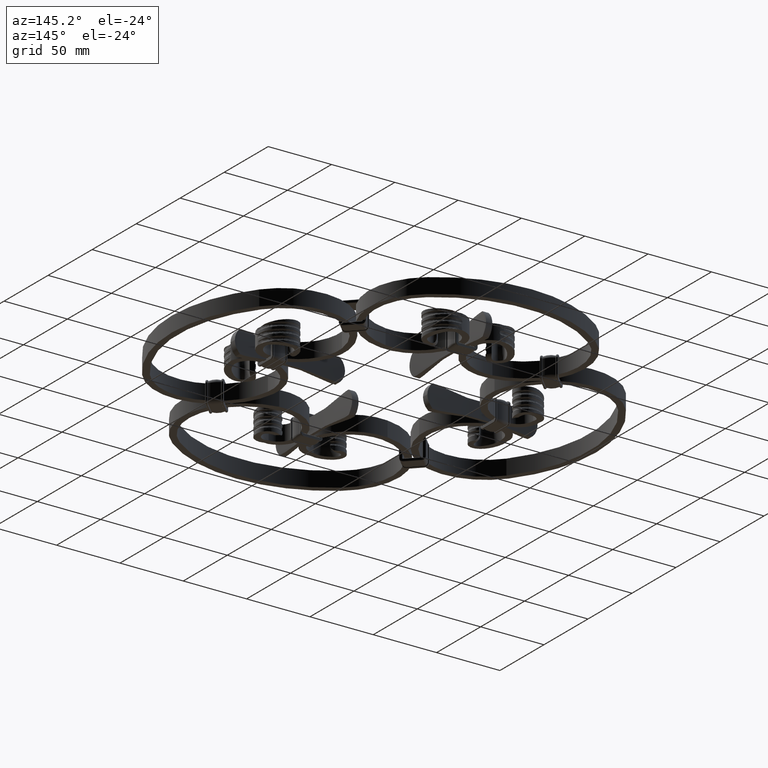
[diagram: clean part render]
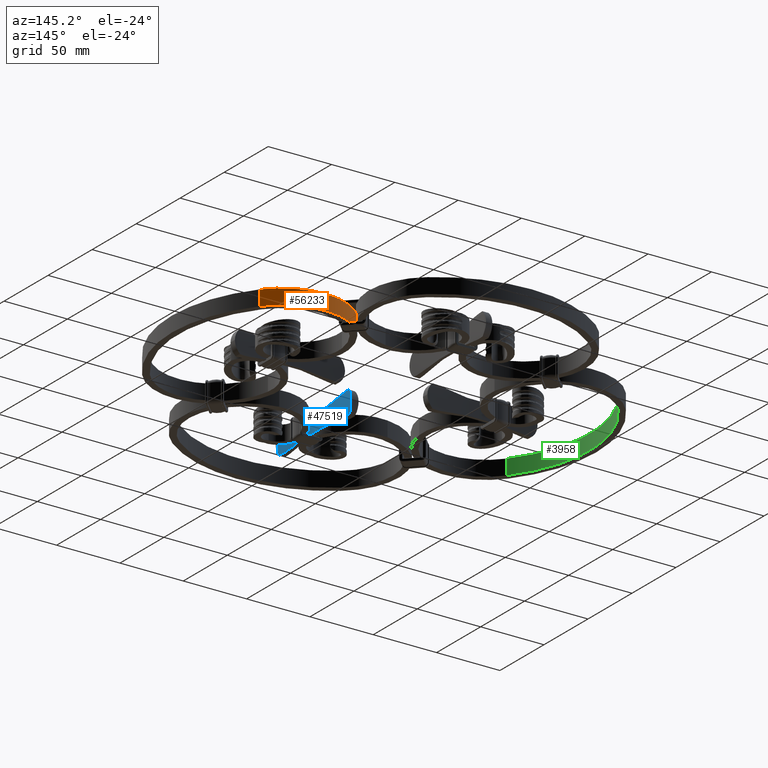
[diagram: same view with three faces highlighted in distinct colors, each labeled with its STEP entity id]
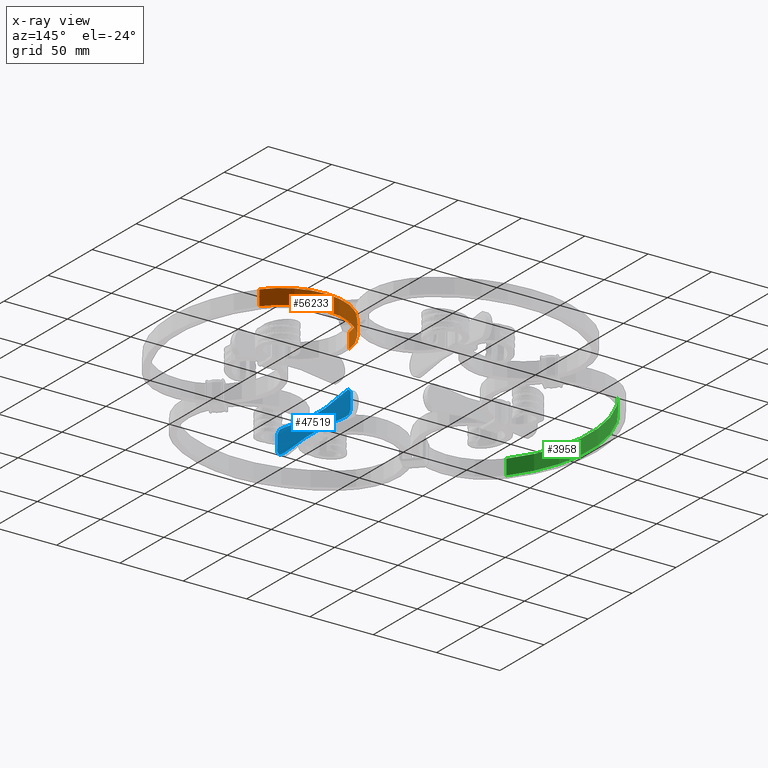
[diagram: x-ray of the same camera — body ghosted, the three highlighted faces saturated]
A machine part, auxiliary view with three faces highlighted in distinct colors.
The next image is the same camera in x-ray (body ghosted, the three faces saturated) — at least one of them is partly hidden behind the body in this view.
Their STEP definitions:

[orange] entity #56233 — the highlighted cylindrical surface (partial cylindrical patch) has radius 48.9407 mm, axis along (0, -0, -1).
#953 = VECTOR ( 'NONE', #55614, 1000.000000000000000 ) ;
#1088 = EDGE_LOOP ( 'NONE', ( #67085, #63960, #34444, #23081 ) ) ;
#1364 = AXIS2_PLACEMENT_3D ( 'NONE', #35351, #4784, #45774 ) ;
#3220 = VERTEX_POINT ( 'NONE', #13267 ) ;
#4410 = EDGE_CURVE ( 'NONE', #3220, #65204, #43055, .T. ) ;
#4784 = DIRECTION ( 'NONE',  ( -0.000000000000000000, 0.000000000000000000, 1.000000000000000000 ) ) ;
#7689 = DIRECTION ( 'NONE',  ( 0.7903160693451023455, 0.6126993639093379906, 0.000000000000000000 ) ) ;
#12461 = VECTOR ( 'NONE', #45234, 1000.000000000000000 ) ;
#13267 = CARTESIAN_POINT ( 'NONE',  ( 57.49999999999994316, 42.75000000000002132, -5.999999999999998224 ) ) ;
#15558 = DIRECTION ( 'NONE',  ( 1.000000000000000000, 0.000000000000000000, 0.000000000000000000 ) ) ;
#18672 = CYLINDRICAL_SURFACE ( 'NONE', #52045, 48.94072785700881667 ) ;
#23081 = ORIENTED_EDGE ( 'NONE', *, *, #4410, .T. ) ;
#23951 = VERTEX_POINT ( 'NONE', #60691 ) ;
#29501 = LINE ( 'NONE', #55679, #12461 ) ;
#29556 = CARTESIAN_POINT ( 'NONE',  ( 57.49999999999994316, 42.75000000000002132, -5.999999999999998224 ) ) ;
#34444 = ORIENTED_EDGE ( 'NONE', *, *, #36689, .T. ) ;
#34636 = CARTESIAN_POINT ( 'NONE',  ( 57.49999999999994316, 42.75000000000002132, 5.999999999999998224 ) ) ;
#35351 = CARTESIAN_POINT ( 'NONE',  ( 106.0476027397259600, 36.55927214299121886, 5.999999999999998224 ) ) ;
#36689 = EDGE_CURVE ( 'NONE', #41275, #3220, #59676, .T. ) ;
#38339 = EDGE_CURVE ( 'NONE', #41275, #23951, #29501, .T. ) ;
#39133 = DIRECTION ( 'NONE',  ( -0.000000000000000000, 0.000000000000000000, 1.000000000000000000 ) ) ;
#41275 = VERTEX_POINT ( 'NONE', #58018 ) ;
#41331 = DIRECTION ( 'NONE',  ( 0.000000000000000000, -0.000000000000000000, -1.000000000000000000 ) ) ;
#43055 = LINE ( 'NONE', #29556, #953 ) ;
#43496 = CIRCLE ( 'NONE', #1364, 48.94072785700881667 ) ;
#44562 = FACE_OUTER_BOUND ( 'NONE', #1088, .T. ) ;
#45234 = DIRECTION ( 'NONE',  ( 0.000000000000000000, 0.000000000000000000, 1.000000000000000000 ) ) ;
#45774 = DIRECTION ( 'NONE',  ( 0.7903160693451023455, 0.6126993639093379906, 0.000000000000000000 ) ) ;
#48658 = EDGE_CURVE ( 'NONE', #23951, #65204, #43496, .T. ) ;
#52045 = AXIS2_PLACEMENT_3D ( 'NONE', #56803, #41331, #15558 ) ;
#55614 = DIRECTION ( 'NONE',  ( 0.000000000000000000, 0.000000000000000000, 1.000000000000000000 ) ) ;
#55679 = CARTESIAN_POINT ( 'NONE',  ( 144.7262464105655226, 66.54522497024053962, -5.999999999999998224 ) ) ;
#56233 = ADVANCED_FACE ( 'NONE', ( #44562 ), #18672, .T. ) ;
#56803 = CARTESIAN_POINT ( 'NONE',  ( 106.0476027397259600, 36.55927214299121886, 0.000000000000000000 ) ) ;
#58018 = CARTESIAN_POINT ( 'NONE',  ( 144.7262464105655226, 66.54522497024055383, -5.999999999999998224 ) ) ;
#59676 = CIRCLE ( 'NONE', #63028, 48.94072785700881667 ) ;
#60691 = CARTESIAN_POINT ( 'NONE',  ( 144.7262464105655226, 66.54522497024055383, 5.999999999999998224 ) ) ;
#63028 = AXIS2_PLACEMENT_3D ( 'NONE', #64354, #39133, #7689 ) ;
#63960 = ORIENTED_EDGE ( 'NONE', *, *, #38339, .F. ) ;
#64354 = CARTESIAN_POINT ( 'NONE',  ( 106.0476027397259600, 36.55927214299121886, -5.999999999999998224 ) ) ;
#65204 = VERTEX_POINT ( 'NONE', #34636 ) ;
#67085 = ORIENTED_EDGE ( 'NONE', *, *, #48658, .F. ) ;

[blue] entity #47519 — the highlighted cylindrical surface (partial cylindrical patch) has radius 574.788 mm, axis along (0, 0, 1).
#125 = CARTESIAN_POINT ( 'NONE',  ( 1.954217205090301723, -109.1173170092626066, -8.926394657787474429 ) ) ;
#976 = VERTEX_POINT ( 'NONE', #24892 ) ;
#1004 = EDGE_LOOP ( 'NONE', ( #30258, #11754, #14284, #25648, #26222, #22195, #31865, #17447, #11628, #57483, #27674, #32777, #13187, #44216, #61000, #22703, #59615, #61031, #56073, #41187 ) ) ;
#1050 = CARTESIAN_POINT ( 'NONE',  ( 2.411516573375679595, -35.73537750832060311, 8.061456845091637291 ) ) ;
#1319 = LINE ( 'NONE', #43125, #4562 ) ;
#1553 = CARTESIAN_POINT ( 'NONE',  ( 2.346238261500912525, -115.3169650549384073, -8.909067424266186919 ) ) ;
#1773 = CARTESIAN_POINT ( 'NONE',  ( 2.329925361867317246, -115.0786551250641594, -9.000000000000007105 ) ) ;
#1882 = CARTESIAN_POINT ( 'NONE',  ( 1.377513084047570668, -97.51241651832494028, 7.152393304054391443 ) ) ;
#1918 = DIRECTION ( 'NONE',  ( 0.000000000000000000, 0.000000000000000000, 1.000000000000000000 ) ) ;
#2288 = VERTEX_POINT ( 'NONE', #66562 ) ;
#3616 = EDGE_CURVE ( 'NONE', #4415, #19535, #8644, .T. ) ;
#3651 = CARTESIAN_POINT ( 'NONE',  ( 2.056457169948834984, -41.16666666666665719, 8.999999999999991118 ) ) ;
#3659 = CARTESIAN_POINT ( 'NONE',  ( 2.499999999999974243, -117.4983512391396658, -6.436818593373573982 ) ) ;
#4102 = CARTESIAN_POINT ( 'NONE',  ( 2.499999999999938716, -34.50164876086002153, -11.00000000000000000 ) ) ;
#4320 = DIRECTION ( 'NONE',  ( -0.000000000000000000, -0.000000000000000000, -1.000000000000000000 ) ) ;
#4415 = VERTEX_POINT ( 'NONE', #52992 ) ;
#4562 = VECTOR ( 'NONE', #1918, 1000.000000000000000 ) ;
#4872 = CARTESIAN_POINT ( 'NONE',  ( 2.313313176871086618, -114.8333333333332718, 9.000000000000005329 ) ) ;
#5070 = CARTESIAN_POINT ( 'NONE',  ( 2.313313176871103938, -37.16666666666669272, 8.999999999999868550 ) ) ;
#5508 = CARTESIAN_POINT ( 'NONE',  ( 2.329925701795314108, -36.92133985502213989, -9.000000000000152767 ) ) ;
#5719 = EDGE_CURVE ( 'NONE', #24975, #51581, #32901, .T. ) ;
#5750 = VERTEX_POINT ( 'NONE', #66062 ) ;
#6654 = CARTESIAN_POINT ( 'NONE',  ( 0.9245330958105927310, -76.00000000000001421, 5.770536851129453915 ) ) ;
#6992 = B_SPLINE_CURVE_WITH_KNOTS ( 'NONE', 3,
 ( #10818, #62234, #25770, #41350 ),
 .UNSPECIFIED., .F., .F.,
 ( 4, 4 ),
 ( 2.786378489780425378E-17, 0.002578567039287732714 ),
 .UNSPECIFIED. ) ;
#7563 = VERTEX_POINT ( 'NONE', #15766 ) ;
#7582 = DIRECTION ( 'NONE',  ( 1.931535745891228232E-16, 1.000000000000000000, -3.512678835379375525E-14 ) ) ;
#7863 = CARTESIAN_POINT ( 'NONE',  ( 2.411516573375658723, -116.2646224916793329, -8.061456845091811374 ) ) ;
#8190 = CARTESIAN_POINT ( 'NONE',  ( 2.056457169948819441, -110.8333333333332860, -8.999999999999984013 ) ) ;
#8644 = B_SPLINE_CURVE_WITH_KNOTS ( 'NONE', 3,
 ( #55783, #8664, #44658, #44888, #13877, #55350, #29040, #65553, #60560 ),
 .UNSPECIFIED., .F., .F.,
 ( 4, 2, 1, 2, 4 ),
 ( 0.000000000000000000, 0.01613431238874369136, 0.03226862477748738273, 0.04840293716623107756, 0.06453724955497476545 ),
 .UNSPECIFIED. ) ;
#8664 = CARTESIAN_POINT ( 'NONE',  ( 1.604092218298766914, -102.8905206479061150, -7.845821374976249096 ) ) ;
#8779 = CARTESIAN_POINT ( 'NONE',  ( 2.499999999999974243, -117.4983512391396658, 6.436818593373565989 ) ) ;
#9533 = CARTESIAN_POINT ( 'NONE',  ( 1.906496300278938349, -43.73137522251253984, 8.779116009544351229 ) ) ;
#10116 = AXIS2_PLACEMENT_3D ( 'NONE', #48782, #59485, #7582 ) ;
#10593 = CARTESIAN_POINT ( 'NONE',  ( 1.906496300278924139, -108.2686247774873323, -8.779116009544340571 ) ) ;
#10818 = CARTESIAN_POINT ( 'NONE',  ( 1.906496300278938349, -43.73137522251256826, -8.779116009544368993 ) ) ;
#10958 = CARTESIAN_POINT ( 'NONE',  ( 2.313313176871103938, -37.16666666666672114, -9.000000000000143885 ) ) ;
#11187 = CARTESIAN_POINT ( 'NONE',  ( 2.346238047178722752, -36.68303805641738080, -8.909070207147522069 ) ) ;
#11628 = ORIENTED_EDGE ( 'NONE', *, *, #24008, .T. ) ;
#11748 = VERTEX_POINT ( 'NONE', #8190 ) ;
#11754 = ORIENTED_EDGE ( 'NONE', *, *, #14278, .T. ) ;
#12095 = EDGE_CURVE ( 'NONE', #976, #33751, #31713, .T. ) ;
#13013 = CARTESIAN_POINT ( 'NONE',  ( 575.7877185223353536, -76.00000000000022737, -9.000000000000031974 ) ) ;
#13187 = ORIENTED_EDGE ( 'NONE', *, *, #18199, .F. ) ;
#13253 = CARTESIAN_POINT ( 'NONE',  ( 1.906496300278938349, -43.73137522251256826, -8.779116009544368993 ) ) ;
#13320 = CARTESIAN_POINT ( 'NONE',  ( 2.358846416900180820, -115.4999999999999858, -8.745355992499920461 ) ) ;
#13877 = CARTESIAN_POINT ( 'NONE',  ( 0.9245330958104908126, -75.99999999999997158, -5.770536851129410394 ) ) ;
#14169 = B_SPLINE_CURVE_WITH_KNOTS ( 'NONE', 3,
 ( #53524, #63976, #16902, #37661, #6654, #32929, #1882, #38538, #53084 ),
 .UNSPECIFIED., .F., .F.,
 ( 4, 2, 1, 2, 4 ),
 ( 4.857225732735059864E-17, 0.01613431238874373647, 0.03226862477748742436, 0.04840293716623111225, 0.06453724955497480709 ),
 .UNSPECIFIED. ) ;
#14278 = EDGE_CURVE ( 'NONE', #17281, #19268, #46413, .T. ) ;
#14284 = ORIENTED_EDGE ( 'NONE', *, *, #26687, .F. ) ;
#14906 = CARTESIAN_POINT ( 'NONE',  ( 2.056457169948819441, -110.8333333333332860, -8.999999999999984013 ) ) ;
#14915 = CARTESIAN_POINT ( 'NONE',  ( 2.358846416900198140, -36.50000000000004263, -8.745355992500067899 ) ) ;
#15199 = CARTESIAN_POINT ( 'NONE',  ( 2.458915517003453566, -116.9307809906757143, 7.292001495542599798 ) ) ;
#15403 = VERTEX_POINT ( 'NONE', #61903 ) ;
#15766 = CARTESIAN_POINT ( 'NONE',  ( 2.056457169948834984, -41.16666666666665719, -8.999999999999984013 ) ) ;
#16282 = CARTESIAN_POINT ( 'NONE',  ( 2.358846416900198140, -36.50000000000000000, 8.745355992499796116 ) ) ;
#16703 = VECTOR ( 'NONE', #4320, 1000.000000000000000 ) ;
#16902 = CARTESIAN_POINT ( 'NONE',  ( 1.377513084047693015, -54.48758348167508814, 7.152393304054377232 ) ) ;
#17281 = VERTEX_POINT ( 'NONE', #22613 ) ;
#17447 = ORIENTED_EDGE ( 'NONE', *, *, #3616, .T. ) ;
#17461 = B_SPLINE_CURVE_WITH_KNOTS ( 'NONE', 3,
 ( #4872, #30250, #46317, #36127 ),
 .UNSPECIFIED., .F., .F.,
 ( 4, 4 ),
 ( 0.000000000000000000, 0.0007272045680351358135 ),
 .UNSPECIFIED. ) ;
#17900 = B_SPLINE_CURVE_WITH_KNOTS ( 'NONE', 3,
 ( #23756, #44083, #7863, #13320 ),
 .UNSPECIFIED., .F., .F.,
 ( 4, 4 ),
 ( 1.856037589235567081E-16, 0.003056579286090765468 ),
 .UNSPECIFIED. ) ;
#18113 = VERTEX_POINT ( 'NONE', #3659 ) ;
#18199 = EDGE_CURVE ( 'NONE', #2288, #51581, #20686, .T. ) ;
#18247 = DIRECTION ( 'NONE',  ( 1.931535745891228232E-16, 1.000000000000000000, -8.661730610480976309E-16 ) ) ;
#18734 = DIRECTION ( 'NONE',  ( 7.703719777548961804E-31, 3.469446951953623261E-15, 1.000000000000000000 ) ) ;
#18968 = B_SPLINE_CURVE_WITH_KNOTS ( 'NONE', 3,
 ( #14906, #24877, #125, #10593 ),
 .UNSPECIFIED., .F., .F.,
 ( 4, 4 ),
 ( 0.000000000000000000, 0.002578567039287750495 ),
 .UNSPECIFIED. ) ;
#19268 = VERTEX_POINT ( 'NONE', #8779 ) ;
#19535 = VERTEX_POINT ( 'NONE', #13253 ) ;
#20686 = LINE ( 'NONE', #4102, #16703 ) ;
#20891 = EDGE_CURVE ( 'NONE', #20900, #17281, #17461, .T. ) ;
#20900 = VERTEX_POINT ( 'NONE', #25503 ) ;
#20959 = CARTESIAN_POINT ( 'NONE',  ( 2.329925361867334566, -36.92134487493584061, 8.999999999999868550 ) ) ;
#21472 = CARTESIAN_POINT ( 'NONE',  ( 2.004176024817529544, -109.9722234575119444, 8.999999999999973355 ) ) ;
#22195 = ORIENTED_EDGE ( 'NONE', *, *, #27620, .T. ) ;
#22233 = CARTESIAN_POINT ( 'NONE',  ( 1.906496300278938349, -43.73137522251253984, 8.779116009544351229 ) ) ;
#22613 = CARTESIAN_POINT ( 'NONE',  ( 2.358846416900180820, -115.4999999999999574, 8.745355992499925790 ) ) ;
#22703 = ORIENTED_EDGE ( 'NONE', *, *, #52746, .T. ) ;
#23756 = CARTESIAN_POINT ( 'NONE',  ( 2.499999999999974243, -117.4983512391396658, -6.436818593373573982 ) ) ;
#24008 = EDGE_CURVE ( 'NONE', #19535, #7563, #6992, .T. ) ;
#24350 = EDGE_CURVE ( 'NONE', #5750, #24975, #43425, .T. ) ;
#24877 = CARTESIAN_POINT ( 'NONE',  ( 2.004176024817549528, -109.9722234575119160, -8.999999999999984013 ) ) ;
#24892 = CARTESIAN_POINT ( 'NONE',  ( 2.358846416900180820, -115.4999999999999858, -8.745355992499920461 ) ) ;
#24975 = VERTEX_POINT ( 'NONE', #14915 ) ;
#25309 = CIRCLE ( 'NONE', #30646, 574.7877185223353536 ) ;
#25503 = CARTESIAN_POINT ( 'NONE',  ( 2.313313176871086618, -114.8333333333332718, 9.000000000000005329 ) ) ;
#25648 = ORIENTED_EDGE ( 'NONE', *, *, #26176, .T. ) ;
#25695 = CARTESIAN_POINT ( 'NONE',  ( 2.358846416900198140, -36.50000000000000000, 8.745355992499796116 ) ) ;
#25770 = CARTESIAN_POINT ( 'NONE',  ( 2.004176024817546420, -42.02777654248799877, -8.999999999999982236 ) ) ;
#26176 = EDGE_CURVE ( 'NONE', #18113, #976, #17900, .T. ) ;
#26222 = ORIENTED_EDGE ( 'NONE', *, *, #12095, .T. ) ;
#26588 = EDGE_CURVE ( 'NONE', #7563, #5750, #46686, .T. ) ;
#26687 = EDGE_CURVE ( 'NONE', #18113, #19268, #1319, .T. ) ;
#27620 = EDGE_CURVE ( 'NONE', #33751, #11748, #48242, .T. ) ;
#27674 = ORIENTED_EDGE ( 'NONE', *, *, #24350, .T. ) ;
#27795 = VERTEX_POINT ( 'NONE', #46425 ) ;
#28456 = EDGE_CURVE ( 'NONE', #15403, #52174, #36639, .T. ) ;
#29040 = CARTESIAN_POINT ( 'NONE',  ( 1.377513084047698788, -54.48758348167501708, -7.152393304054381673 ) ) ;
#29130 = VERTEX_POINT ( 'NONE', #22233 ) ;
#29882 = CYLINDRICAL_SURFACE ( 'NONE', #44722, 574.7877185223354672 ) ;
#29917 = CARTESIAN_POINT ( 'NONE',  ( 575.7877185223353536, -76.00000000000022737, -11.00000000000000000 ) ) ;
#30137 = CARTESIAN_POINT ( 'NONE',  ( 2.411516573375631189, -116.2646224916793045, 8.061456845091823809 ) ) ;
#30250 = CARTESIAN_POINT ( 'NONE',  ( 2.329925701795296789, -115.0786601449778601, 9.000000000000014211 ) ) ;
#30258 = ORIENTED_EDGE ( 'NONE', *, *, #20891, .T. ) ;
#30542 = AXIS2_PLACEMENT_3D ( 'NONE', #13013, #33396, #18247 ) ;
#30646 = AXIS2_PLACEMENT_3D ( 'NONE', #39047, #64706, #43591 ) ;
#31713 = B_SPLINE_CURVE_WITH_KNOTS ( 'NONE', 3,
 ( #52979, #1553, #1773, #58463 ),
 .UNSPECIFIED., .F., .F.,
 ( 4, 4 ),
 ( 0.000000000000000000, 0.0007271846494376773239 ),
 .UNSPECIFIED. ) ;
#31859 = CARTESIAN_POINT ( 'NONE',  ( 2.056457169948819441, -110.8333333333332860, 8.999999999999973355 ) ) ;
#31865 = ORIENTED_EDGE ( 'NONE', *, *, #43463, .T. ) ;
#32777 = ORIENTED_EDGE ( 'NONE', *, *, #5719, .T. ) ;
#32901 = B_SPLINE_CURVE_WITH_KNOTS ( 'NONE', 3,
 ( #44060, #34128, #48817, #44289 ),
 .UNSPECIFIED., .F., .F.,
 ( 4, 4 ),
 ( 1.734723475976807094E-18, 0.003056579286090668757 ),
 .UNSPECIFIED. ) ;
#32929 = CARTESIAN_POINT ( 'NONE',  ( 1.075466904189149142, -86.75620825916246304, 6.229463148870583389 ) ) ;
#33293 = CARTESIAN_POINT ( 'NONE',  ( 2.313313176871103938, -37.16666666666669272, 8.999999999999868550 ) ) ;
#33396 = DIRECTION ( 'NONE',  ( -1.925929944387227095E-31, -8.673617379883998001E-16, -1.000000000000000000 ) ) ;
#33751 = VERTEX_POINT ( 'NONE', #57562 ) ;
#34128 = CARTESIAN_POINT ( 'NONE',  ( 2.411516573375649841, -35.73537750832067417, -8.061456845091946377 ) ) ;
#36127 = CARTESIAN_POINT ( 'NONE',  ( 2.358846416900180820, -115.4999999999999574, 8.745355992499925790 ) ) ;
#36639 = B_SPLINE_CURVE_WITH_KNOTS ( 'NONE', 3,
 ( #25695, #51919, #20959, #5070 ),
 .UNSPECIFIED., .F., .F.,
 ( 4, 4 ),
 ( 7.770031522344853663E-18, 0.0007271846494376701681 ),
 .UNSPECIFIED. ) ;
#37661 = CARTESIAN_POINT ( 'NONE',  ( 1.075466904189262385, -65.24379174083752275, 6.229463148870573619 ) ) ;
#38390 = B_SPLINE_CURVE_WITH_KNOTS ( 'NONE', 3,
 ( #3651, #50514, #40077, #9533 ),
 .UNSPECIFIED., .F., .F.,
 ( 4, 4 ),
 ( 0.000000000000000000, 0.002578567039287680239 ),
 .UNSPECIFIED. ) ;
#38538 = CARTESIAN_POINT ( 'NONE',  ( 1.604092218298766914, -102.8905206479061860, 7.845821374976269524 ) ) ;
#38613 = EDGE_CURVE ( 'NONE', #27795, #64008, #43600, .T. ) ;
#39047 = CARTESIAN_POINT ( 'NONE',  ( 575.7877185223353536, -76.00000000000022737, 9.000000000001138645 ) ) ;
#39281 = B_SPLINE_CURVE_WITH_KNOTS ( 'NONE', 3,
 ( #57056, #63152, #1050, #16282 ),
 .UNSPECIFIED., .F., .F.,
 ( 4, 4 ),
 ( 0.000000000000000000, 0.003056579286090814907 ),
 .UNSPECIFIED. ) ;
#39314 = EDGE_CURVE ( 'NONE', #60639, #29130, #38390, .T. ) ;
#39633 = DIRECTION ( 'NONE',  ( 1.931535745891228232E-16, 1.000000000000000000, 0.000000000000000000 ) ) ;
#40077 = CARTESIAN_POINT ( 'NONE',  ( 1.954217205090316600, -42.88268299073732237, 8.926394657787463771 ) ) ;
#41187 = ORIENTED_EDGE ( 'NONE', *, *, #47082, .T. ) ;
#41350 = CARTESIAN_POINT ( 'NONE',  ( 2.056457169948834984, -41.16666666666665719, -8.999999999999984013 ) ) ;
#42025 = CARTESIAN_POINT ( 'NONE',  ( 2.056457169948819441, -110.8333333333332860, 8.999999999999973355 ) ) ;
#43125 = CARTESIAN_POINT ( 'NONE',  ( 2.499999999999920508, -117.4983512391399501, -11.00000000000000000 ) ) ;
#43425 = B_SPLINE_CURVE_WITH_KNOTS ( 'NONE', 3,
 ( #10958, #5508, #11187, #51675 ),
 .UNSPECIFIED., .F., .F.,
 ( 4, 4 ),
 ( 0.000000000000000000, 0.0007272045680351281157 ),
 .UNSPECIFIED. ) ;
#43463 = EDGE_CURVE ( 'NONE', #11748, #4415, #18968, .T. ) ;
#43567 = EDGE_CURVE ( 'NONE', #2288, #15403, #39281, .T. ) ;
#43591 = DIRECTION ( 'NONE',  ( -1.931535745891228478E-16, -1.000000000000000000, 3.295984668887204244E-14 ) ) ;
#43600 = B_SPLINE_CURVE_WITH_KNOTS ( 'NONE', 3,
 ( #58163, #47686, #21472, #31859 ),
 .UNSPECIFIED., .F., .F.,
 ( 4, 4 ),
 ( 0.000000000000000000, 0.002578567039287691081 ),
 .UNSPECIFIED. ) ;
#44060 = CARTESIAN_POINT ( 'NONE',  ( 2.358846416900198140, -36.50000000000004263, -8.745355992500067899 ) ) ;
#44083 = CARTESIAN_POINT ( 'NONE',  ( 2.458915517003610329, -116.9307809906757001, -7.292001495542609568 ) ) ;
#44216 = ORIENTED_EDGE ( 'NONE', *, *, #43567, .T. ) ;
#44289 = CARTESIAN_POINT ( 'NONE',  ( 2.499999999999992450, -34.50164876086030574, -6.436818593373654807 ) ) ;
#44658 = CARTESIAN_POINT ( 'NONE',  ( 1.377513084047572223, -97.51241651832488344, -7.152393304054363021 ) ) ;
#44722 = AXIS2_PLACEMENT_3D ( 'NONE', #29917, #55103, #39633 ) ;
#44888 = CARTESIAN_POINT ( 'NONE',  ( 1.075466904189150918, -86.75620825916243462, -6.229463148870562073 ) ) ;
#46253 = EDGE_CURVE ( 'NONE', #29130, #27795, #14169, .T. ) ;
#46317 = CARTESIAN_POINT ( 'NONE',  ( 2.346238047178705877, -115.3169619435826263, 8.909070207147379961 ) ) ;
#46413 = B_SPLINE_CURVE_WITH_KNOTS ( 'NONE', 3,
 ( #60978, #30137, #15199, #50508 ),
 .UNSPECIFIED., .F., .F.,
 ( 4, 4 ),
 ( 8.684452633802430946E-18, 0.003056579286090624088 ),
 .UNSPECIFIED. ) ;
#46425 = CARTESIAN_POINT ( 'NONE',  ( 1.906496300278924139, -108.2686247774873891, 8.779116009544368993 ) ) ;
#46686 = CIRCLE ( 'NONE', #10116, 574.7877185223354672 ) ;
#47082 = EDGE_CURVE ( 'NONE', #64008, #20900, #66434, .T. ) ;
#47519 = ADVANCED_FACE ( 'NONE', ( #49303 ), #29882, .F. ) ;
#47686 = CARTESIAN_POINT ( 'NONE',  ( 1.954217205090348131, -109.1173170092625924, 8.926394657787460218 ) ) ;
#47825 = CARTESIAN_POINT ( 'NONE',  ( 2.056457169948834984, -41.16666666666665719, 8.999999999999991118 ) ) ;
#48242 = CIRCLE ( 'NONE', #30542, 574.7877185223354672 ) ;
#48782 = CARTESIAN_POINT ( 'NONE',  ( 575.7877185223353536, -76.00000000000022737, -8.999999999998779643 ) ) ;
#48817 = CARTESIAN_POINT ( 'NONE',  ( 2.458915517003461115, -35.06921900932444913, -7.292001495542931089 ) ) ;
#49303 = FACE_OUTER_BOUND ( 'NONE', #1004, .T. ) ;
#49474 = AXIS2_PLACEMENT_3D ( 'NONE', #49704, #18734, #60617 ) ;
#49704 = CARTESIAN_POINT ( 'NONE',  ( 575.7877185223353536, -76.00000000000022737, 8.999999999999868550 ) ) ;
#50508 = CARTESIAN_POINT ( 'NONE',  ( 2.499999999999974243, -117.4983512391396658, 6.436818593373565989 ) ) ;
#50514 = CARTESIAN_POINT ( 'NONE',  ( 2.004176024817565960, -42.02777654248799877, 8.999999999999973355 ) ) ;
#51581 = VERTEX_POINT ( 'NONE', #63184 ) ;
#51675 = CARTESIAN_POINT ( 'NONE',  ( 2.358846416900198140, -36.50000000000004263, -8.745355992500067899 ) ) ;
#51919 = CARTESIAN_POINT ( 'NONE',  ( 2.346238261500929845, -36.68303494506159268, 8.909067424266044810 ) ) ;
#52174 = VERTEX_POINT ( 'NONE', #33293 ) ;
#52746 = EDGE_CURVE ( 'NONE', #52174, #60639, #25309, .T. ) ;
#52979 = CARTESIAN_POINT ( 'NONE',  ( 2.358846416900180820, -115.4999999999999858, -8.745355992499920461 ) ) ;
#52992 = CARTESIAN_POINT ( 'NONE',  ( 1.906496300278924139, -108.2686247774873323, -8.779116009544340571 ) ) ;
#53084 = CARTESIAN_POINT ( 'NONE',  ( 1.906496300278924139, -108.2686247774873891, 8.779116009544368993 ) ) ;
#53524 = CARTESIAN_POINT ( 'NONE',  ( 1.906496300278938349, -43.73137522251253984, 8.779116009544351229 ) ) ;
#55103 = DIRECTION ( 'NONE',  ( 0.000000000000000000, 0.000000000000000000, 1.000000000000000000 ) ) ;
#55350 = CARTESIAN_POINT ( 'NONE',  ( 1.075466904189267270, -65.24379174083748012, -6.229463148870577172 ) ) ;
#55783 = CARTESIAN_POINT ( 'NONE',  ( 1.906496300278924139, -108.2686247774873323, -8.779116009544340571 ) ) ;
#56073 = ORIENTED_EDGE ( 'NONE', *, *, #38613, .T. ) ;
#57056 = CARTESIAN_POINT ( 'NONE',  ( 2.499999999999992450, -34.50164876086002153, 6.436818593373401676 ) ) ;
#57483 = ORIENTED_EDGE ( 'NONE', *, *, #26588, .T. ) ;
#57562 = CARTESIAN_POINT ( 'NONE',  ( 2.313313176871086618, -114.8333333333333002, -9.000000000000000000 ) ) ;
#58163 = CARTESIAN_POINT ( 'NONE',  ( 1.906496300278924139, -108.2686247774873891, 8.779116009544368993 ) ) ;
#58463 = CARTESIAN_POINT ( 'NONE',  ( 2.313313176871086618, -114.8333333333333002, -9.000000000000000000 ) ) ;
#59485 = DIRECTION ( 'NONE',  ( -7.800016274768432723E-30, -3.512815038853092426E-14, -1.000000000000000000 ) ) ;
#59615 = ORIENTED_EDGE ( 'NONE', *, *, #39314, .T. ) ;
#60560 = CARTESIAN_POINT ( 'NONE',  ( 1.906496300278938349, -43.73137522251256826, -8.779116009544368993 ) ) ;
#60617 = DIRECTION ( 'NONE',  ( -1.931535745891228478E-16, -1.000000000000000000, 3.470728293398301361E-15 ) ) ;
#60639 = VERTEX_POINT ( 'NONE', #47825 ) ;
#60978 = CARTESIAN_POINT ( 'NONE',  ( 2.358846416900180820, -115.4999999999999574, 8.745355992499925790 ) ) ;
#61000 = ORIENTED_EDGE ( 'NONE', *, *, #28456, .T. ) ;
#61031 = ORIENTED_EDGE ( 'NONE', *, *, #46253, .T. ) ;
#61903 = CARTESIAN_POINT ( 'NONE',  ( 2.358846416900198140, -36.50000000000000000, 8.745355992499796116 ) ) ;
#62234 = CARTESIAN_POINT ( 'NONE',  ( 1.954217205090363008, -42.88268299073737921, -8.926394657787465547 ) ) ;
#63152 = CARTESIAN_POINT ( 'NONE',  ( 2.458915517003625428, -35.06921900932430702, 7.292001495542508316 ) ) ;
#63184 = CARTESIAN_POINT ( 'NONE',  ( 2.499999999999992450, -34.50164876086030574, -6.436818593373654807 ) ) ;
#63976 = CARTESIAN_POINT ( 'NONE',  ( 1.604092218298778905, -49.10947935209380688, 7.845821374976249096 ) ) ;
#64008 = VERTEX_POINT ( 'NONE', #42025 ) ;
#64706 = DIRECTION ( 'NONE',  ( 7.318533788671564905E-30, 3.295974604355965034E-14, 1.000000000000000000 ) ) ;
#65553 = CARTESIAN_POINT ( 'NONE',  ( 1.604092218298786010, -49.10947935209378556, -7.845821374976223339 ) ) ;
#66062 = CARTESIAN_POINT ( 'NONE',  ( 2.313313176871103938, -37.16666666666672114, -9.000000000000143885 ) ) ;
#66434 = CIRCLE ( 'NONE', #49474, 574.7877185223353536 ) ;
#66562 = CARTESIAN_POINT ( 'NONE',  ( 2.499999999999992450, -34.50164876086002153, 6.436818593373401676 ) ) ;

[green] entity #3958 — the highlighted cylindrical surface (partial cylindrical patch) has radius 103.61 mm, axis along (-0, -0, -1).
#899 = CARTESIAN_POINT ( 'NONE',  ( -58.89008641098027397, -8.102657665040710185E-15, 5.999999999999998224 ) ) ;
#3958 = ADVANCED_FACE ( 'NONE', ( #43905 ), #10730, .F. ) ;
#4995 = DIRECTION ( 'NONE',  ( -0.000000000000000000, 0.000000000000000000, -1.000000000000000000 ) ) ;
#8381 = ORIENTED_EDGE ( 'NONE', *, *, #49555, .T. ) ;
#8528 = ORIENTED_EDGE ( 'NONE', *, *, #23303, .F. ) ;
#10730 = CYLINDRICAL_SURFACE ( 'NONE', #67008, 103.6099135890197118 ) ;
#16473 = DIRECTION ( 'NONE',  ( -0.000000000000000000, -0.000000000000000000, -1.000000000000000000 ) ) ;
#18684 = VERTEX_POINT ( 'NONE', #24686 ) ;
#20122 = LINE ( 'NONE', #53205, #45251 ) ;
#23303 = EDGE_CURVE ( 'NONE', #18684, #61159, #50986, .T. ) ;
#24686 = CARTESIAN_POINT ( 'NONE',  ( -140.7746660638400442, 63.48172815069384711, 5.999999999999998224 ) ) ;
#24853 = EDGE_CURVE ( 'NONE', #55269, #29184, #20122, .T. ) ;
#25108 = VECTOR ( 'NONE', #4995, 1000.000000000000000 ) ;
#25905 = AXIS2_PLACEMENT_3D ( 'NONE', #899, #53440, #42996 ) ;
#27430 = DIRECTION ( 'NONE',  ( 0.000000000000000000, -0.000000000000000000, -1.000000000000000000 ) ) ;
#29071 = EDGE_CURVE ( 'NONE', #55269, #18684, #61876, .T. ) ;
#29184 = VERTEX_POINT ( 'NONE', #61763 ) ;
#34412 = DIRECTION ( 'NONE',  ( -1.000000000000000000, 0.000000000000000000, 0.000000000000000000 ) ) ;
#36649 = EDGE_LOOP ( 'NONE', ( #8381, #8528, #44882, #47360 ) ) ;
#41978 = CARTESIAN_POINT ( 'NONE',  ( -58.89008641098027397, -8.102657665040710185E-15, -5.999999999999998224 ) ) ;
#42221 = DIRECTION ( 'NONE',  ( -1.000000000000000000, 7.820349795079268340E-17, 0.000000000000000000 ) ) ;
#42996 = DIRECTION ( 'NONE',  ( -1.000000000000000000, 7.820349795079268340E-17, 0.000000000000000000 ) ) ;
#43905 = FACE_OUTER_BOUND ( 'NONE', #36649, .T. ) ;
#44882 = ORIENTED_EDGE ( 'NONE', *, *, #29071, .F. ) ;
#45251 = VECTOR ( 'NONE', #27430, 1000.000000000000000 ) ;
#45550 = CARTESIAN_POINT ( 'NONE',  ( -140.7746660638400158, 63.48172815069384711, -5.999999999999998224 ) ) ;
#47360 = ORIENTED_EDGE ( 'NONE', *, *, #24853, .T. ) ;
#47410 = AXIS2_PLACEMENT_3D ( 'NONE', #41978, #16473, #42221 ) ;
#48189 = CARTESIAN_POINT ( 'NONE',  ( -140.7746660638400442, -63.48172815069384711, 5.999999999999998224 ) ) ;
#49465 = CARTESIAN_POINT ( 'NONE',  ( -140.7746660638400442, 63.48172815069384711, -5.999999999999998224 ) ) ;
#49555 = EDGE_CURVE ( 'NONE', #29184, #61159, #55643, .T. ) ;
#50986 = LINE ( 'NONE', #45550, #25108 ) ;
#53205 = CARTESIAN_POINT ( 'NONE',  ( -140.7746660638400158, -63.48172815069384711, -5.999999999999998224 ) ) ;
#53440 = DIRECTION ( 'NONE',  ( -0.000000000000000000, -0.000000000000000000, -1.000000000000000000 ) ) ;
#54816 = CARTESIAN_POINT ( 'NONE',  ( -58.89008641098027397, -8.102657665040710185E-15, 0.000000000000000000 ) ) ;
#55269 = VERTEX_POINT ( 'NONE', #48189 ) ;
#55643 = CIRCLE ( 'NONE', #47410, 103.6099135890197118 ) ;
#60036 = DIRECTION ( 'NONE',  ( -0.000000000000000000, -0.000000000000000000, -1.000000000000000000 ) ) ;
#61159 = VERTEX_POINT ( 'NONE', #49465 ) ;
#61763 = CARTESIAN_POINT ( 'NONE',  ( -140.7746660638400442, -63.48172815069384711, -5.999999999999998224 ) ) ;
#61876 = CIRCLE ( 'NONE', #25905, 103.6099135890197118 ) ;
#67008 = AXIS2_PLACEMENT_3D ( 'NONE', #54816, #60036, #34412 ) ;